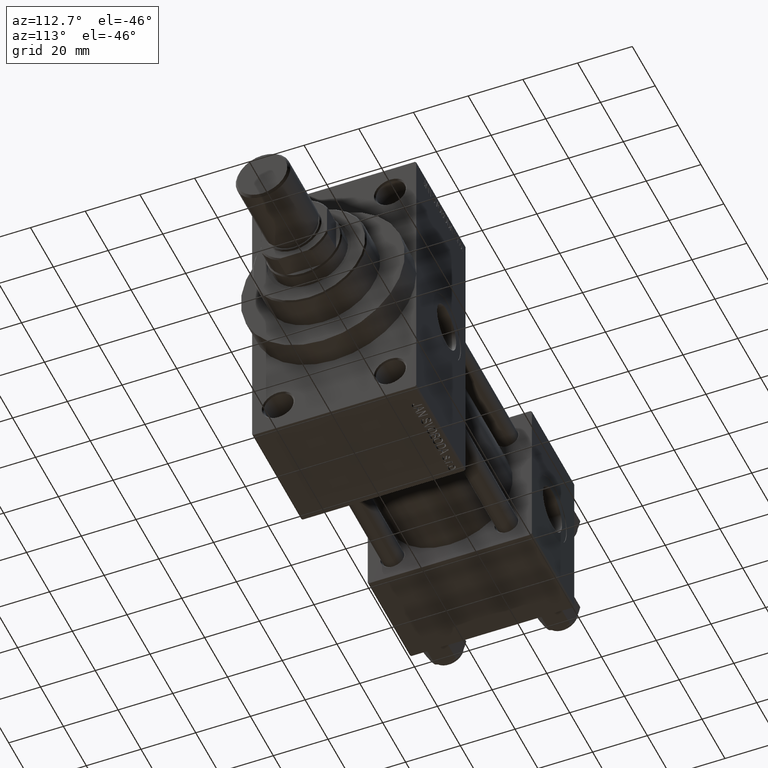
[diagram: clean part render]
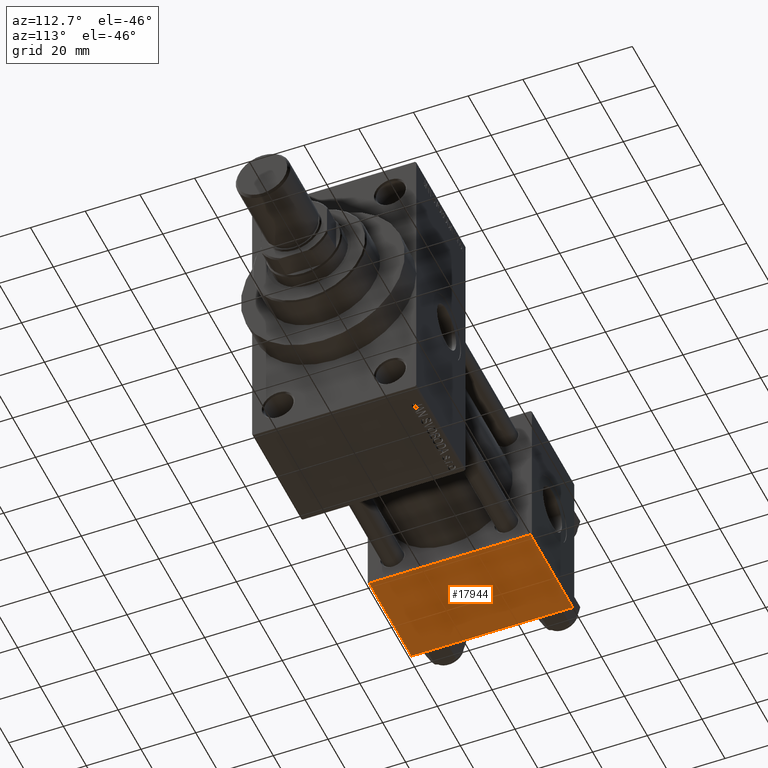
[diagram: same view with one face highlighted and labeled with its STEP entity id]
A machine part, auxiliary view. The second image highlights one B-rep face of the part: STEP entity #17944.
In plain terms, the highlighted planar face has unit normal (0, 0, -1).
Its self-contained STEP definition (entity closure, byte-faithful):
#1096 = ORIENTED_EDGE ( 'NONE', *, *, #7253, .T. ) ;
#3368 = FACE_OUTER_BOUND ( 'NONE', #15988, .T. ) ;
#4260 = CARTESIAN_POINT ( 'NONE',  ( 37.00000000000000000, -29.50000000000000000, -30.00000000000000711 ) ) ;
#4925 = CARTESIAN_POINT ( 'NONE',  ( 37.00000000000000000, 29.49999999999997868, -30.00000000000000000 ) ) ;
#5282 = LINE ( 'NONE', #19290, #9462 ) ;
#6049 = VERTEX_POINT ( 'NONE', #29299 ) ;
#6667 = ORIENTED_EDGE ( 'NONE', *, *, #17207, .F. ) ;
#6996 = DIRECTION ( 'NONE',  ( 0.000000000000000000, 1.000000000000000000, 1.156482317317871725E-16 ) ) ;
#7237 = PLANE ( 'NONE',  #22812 ) ;
#7253 = EDGE_CURVE ( 'NONE', #6049, #34589, #47351, .T. ) ;
#7554 = LINE ( 'NONE', #11423, #12657 ) ;
#7845 = EDGE_CURVE ( 'NONE', #30712, #23081, #5282, .T. ) ;
#9462 = VECTOR ( 'NONE', #34959, 1000.000000000000000 ) ;
#10323 = LINE ( 'NONE', #25505, #36752 ) ;
#11066 = EDGE_CURVE ( 'NONE', #34589, #30712, #7554, .T. ) ;
#11423 = CARTESIAN_POINT ( 'NONE',  ( 37.00000000000000000, 29.99999999999999289, -30.00000000000000000 ) ) ;
#12657 = VECTOR ( 'NONE', #40847, 1000.000000000000000 ) ;
#13354 = CARTESIAN_POINT ( 'NONE',  ( 37.00000000000000000, 29.49999999999997868, -30.00000000000000000 ) ) ;
#15988 = EDGE_LOOP ( 'NONE', ( #6667, #1096, #42409, #42635 ) ) ;
#16389 = VECTOR ( 'NONE', #32158, 1000.000000000000000 ) ;
#17207 = EDGE_CURVE ( 'NONE', #6049, #23081, #10323, .T. ) ;
#17944 = ADVANCED_FACE ( 'NONE', ( #3368 ), #7237, .T. ) ;
#19290 = CARTESIAN_POINT ( 'NONE',  ( 0.000000000000000000, -29.50000000000001066, -30.00000000000000711 ) ) ;
#21957 = DIRECTION ( 'NONE',  ( 0.000000000000000000, 1.156482317317871725E-16, -1.000000000000000000 ) ) ;
#22812 = AXIS2_PLACEMENT_3D ( 'NONE', #40050, #21957, #6996 ) ;
#23081 = VERTEX_POINT ( 'NONE', #43278 ) ;
#25505 = CARTESIAN_POINT ( 'NONE',  ( 0.000000000000000000, 29.99999999999999289, -30.00000000000000000 ) ) ;
#29299 = CARTESIAN_POINT ( 'NONE',  ( 0.000000000000000000, 29.49999999999997868, -30.00000000000000000 ) ) ;
#30712 = VERTEX_POINT ( 'NONE', #4260 ) ;
#32158 = DIRECTION ( 'NONE',  ( 1.000000000000000000, 0.000000000000000000, 0.000000000000000000 ) ) ;
#34589 = VERTEX_POINT ( 'NONE', #4925 ) ;
#34959 = DIRECTION ( 'NONE',  ( -1.000000000000000000, 0.000000000000000000, 0.000000000000000000 ) ) ;
#36599 = DIRECTION ( 'NONE',  ( 0.000000000000000000, -1.000000000000000000, -1.156482317317871725E-16 ) ) ;
#36752 = VECTOR ( 'NONE', #36599, 1000.000000000000000 ) ;
#40050 = CARTESIAN_POINT ( 'NONE',  ( 37.00000000000000000, 29.99999999999999289, -30.00000000000000000 ) ) ;
#40847 = DIRECTION ( 'NONE',  ( 0.000000000000000000, -1.000000000000000000, -1.156482317317871725E-16 ) ) ;
#42409 = ORIENTED_EDGE ( 'NONE', *, *, #11066, .T. ) ;
#42635 = ORIENTED_EDGE ( 'NONE', *, *, #7845, .T. ) ;
#43278 = CARTESIAN_POINT ( 'NONE',  ( 0.000000000000000000, -29.50000000000000000, -30.00000000000000711 ) ) ;
#47351 = LINE ( 'NONE', #13354, #16389 ) ;